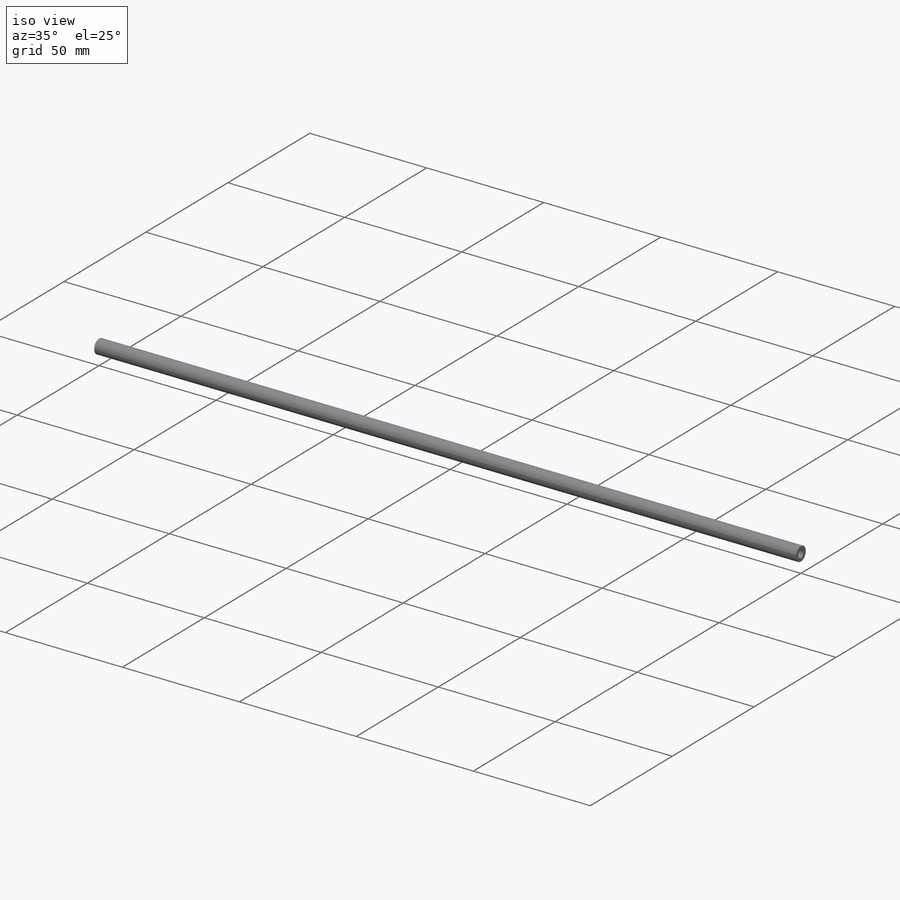
[diagram: iso view]
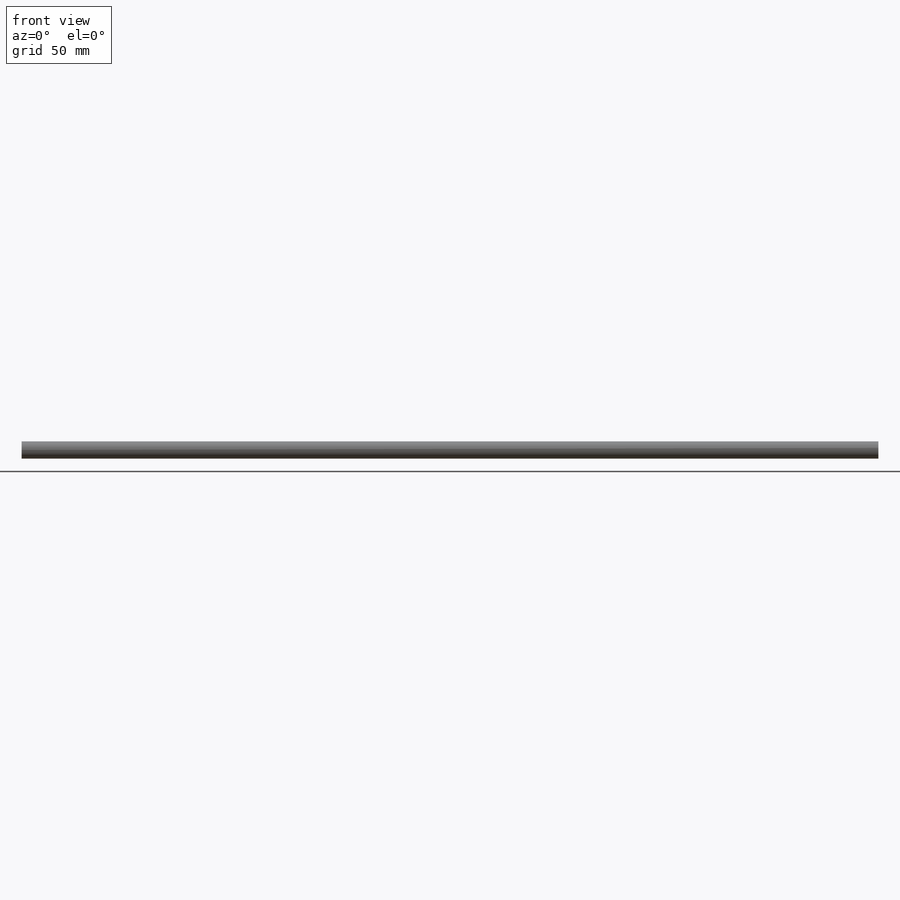
[diagram: front view]
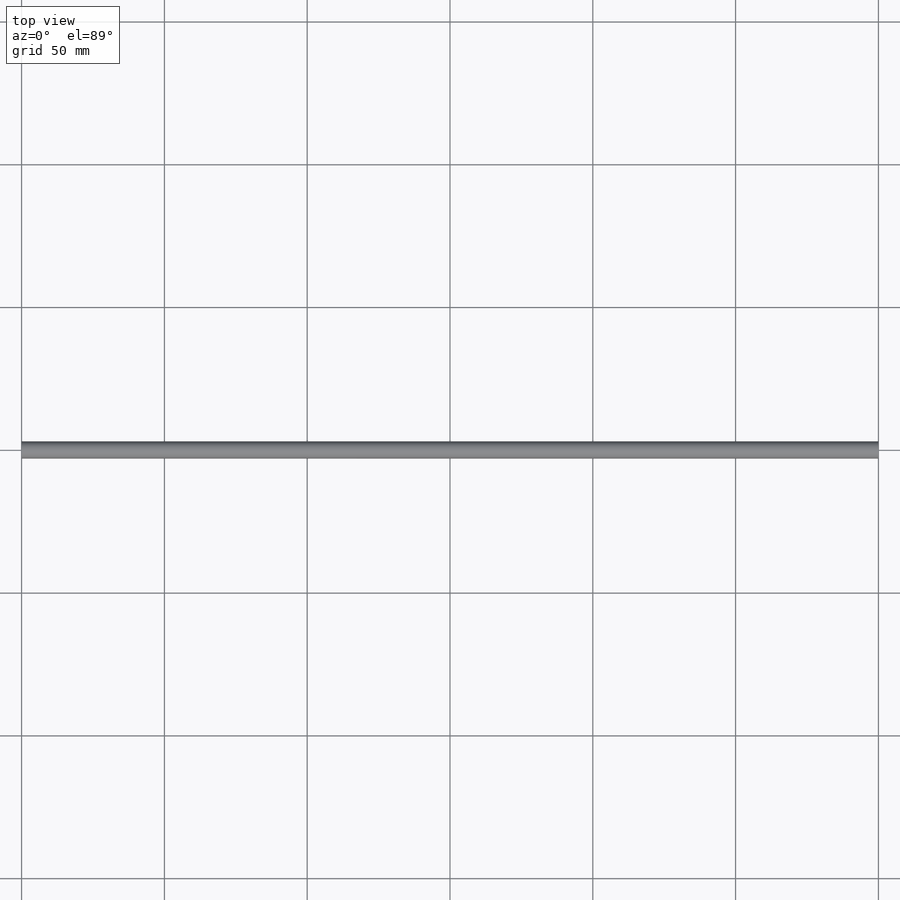
[diagram: top view]
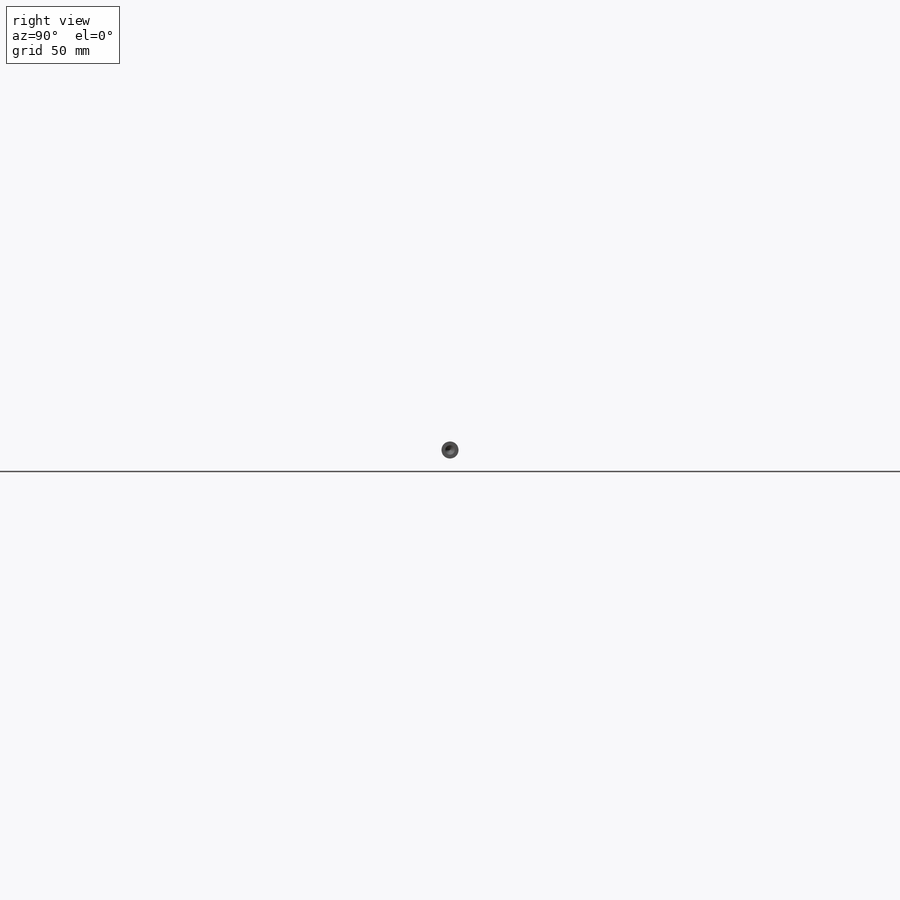
[diagram: right view]
SOLIDWORKS PART (.sldprt)
format: sldprt  version: not decoded by parser v0  size: 171,008 bytes
history: native  units: mm
features: thread x4, sketch x3, material x1, extrude x1, hole x1 (+12 scaffold rows collapsed)
feature tree (22):
  scaffold x12  (default folders/planes/origin — collapsed)
  material  "Alloy Steel"
  sketch  "Sketch1"  dims[D1=6.0mm]
  extrude  "Boss-Extrude1"  Depth=300mm
  hole  "M4 Tapped Hole2"  Diameter=3.3mm Depth=10.1mm
  sketch  "3DSketch2"
  sketch  "Sketch3"  dims[hole-wizard template sketch: 50 standard entries collapsed; hole parameters above]
  thread  "Hole Thread3"  Diameter=8mm  [1 undecoded]
  thread  "Hole Thread4"  Diameter=8mm  [1 undecoded]
  thread  "Hole Thread5"  Diameter=8mm  [1 undecoded]
  thread  "Hole Thread6"  Diameter=8mm  [1 undecoded]
decode coverage: 8 of 9 modeling features carry decoded parameters
note: ~ marks probable driven/reference dimensions
note: 4 parameter values undecoded
note: suppression state not decoded; provenance and decode notes live in map.json
